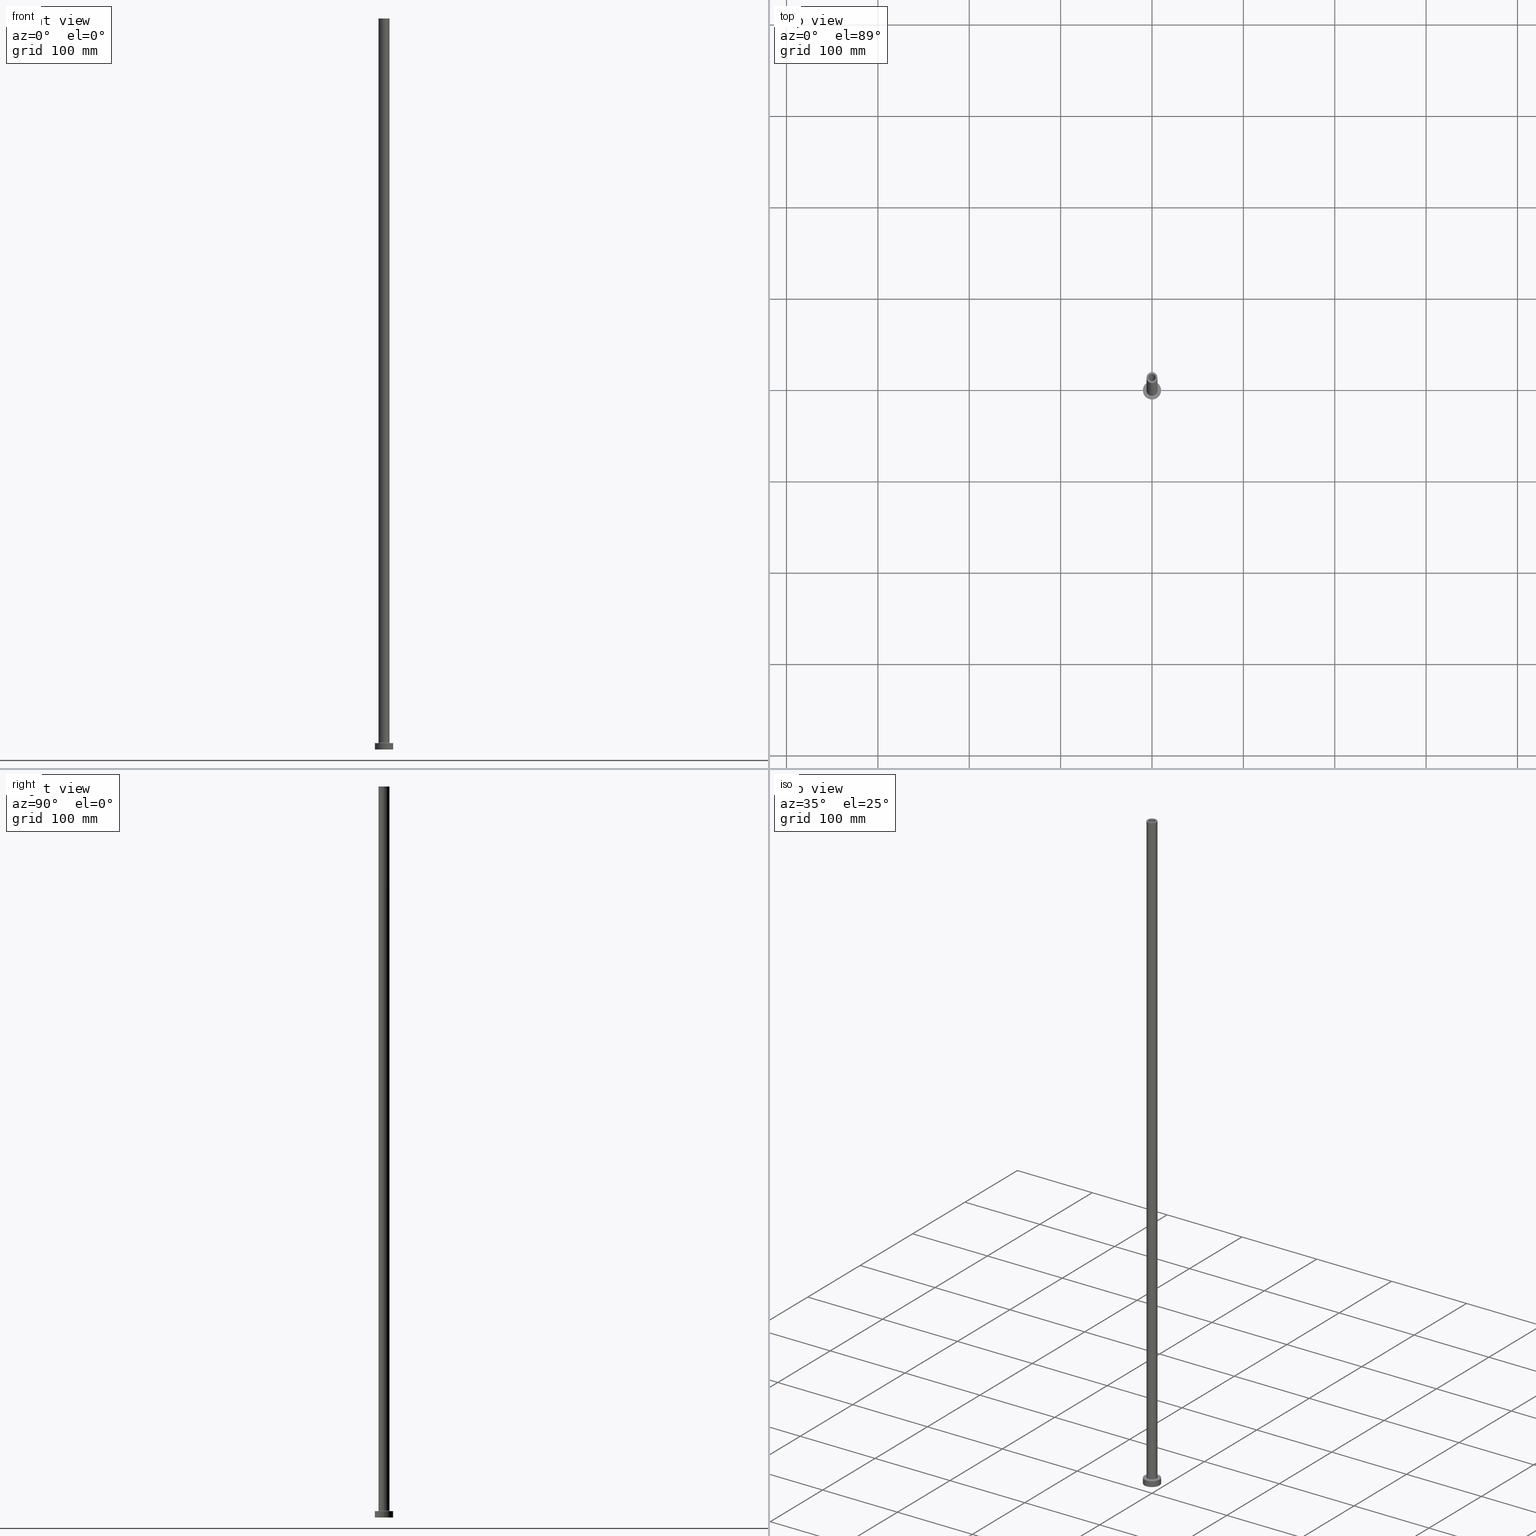
[diagram: canonical four-view strip — front | top / right | iso, engineering-drawing reading convention]
A machine part, canonical four-view strip (front | top / right | iso — engineering-drawing reading convention). The complete STEP part file that produces these views, byte-faithful:
ISO-10303-21;
HEADER;
FILE_DESCRIPTION (( 'STEP AP203' ),
    '1' );
FILE_NAME ('60a7.STEP',
    '2023-02-13T12:41:54',
    ( '' ),
    ( '' ),
    'SwSTEP 2.0',
    'SolidWorks 2019',
    '' );
FILE_SCHEMA (( 'CONFIG_CONTROL_DESIGN' ));
ENDSEC;

DATA;
#1 = EDGE_CURVE ( 'NONE', #301, #285, #30, .T. ) ;
#2 = DATE_AND_TIME ( #144, #110 ) ;
#3 = DIRECTION ( 'NONE',  ( 1.000000000000000000, 0.000000000000000000, 0.000000000000000000 ) ) ;
#4 = ORIENTED_EDGE ( 'NONE', *, *, #381, .T. ) ;
#5 = FACE_BOUND ( 'NONE', #322, .T. ) ;
#6 = ORIENTED_EDGE ( 'NONE', *, *, #100, .F. ) ;
#7 = LINE ( 'NONE', #357, #350 ) ;
#8 = ORIENTED_EDGE ( 'NONE', *, *, #55, .T. ) ;
#9 = CIRCLE ( 'NONE', #188, 4.000000000000000000 ) ;
#10 = PERSON_AND_ORGANIZATION ( #119, #73 ) ;
#11 = CARTESIAN_POINT ( 'NONE',  ( 0.000000000000000000, 0.000000000000000000, 755.0000000000000000 ) ) ;
#12 = ORIENTED_EDGE ( 'NONE', *, *, #370, .T. ) ;
#13 = CARTESIAN_POINT ( 'NONE',  ( 0.000000000000000000, 0.000000000000000000, 800.0000000000000000 ) ) ;
#14 = VERTEX_POINT ( 'NONE', #416 ) ;
#15 = DIRECTION ( 'NONE',  ( 0.000000000000000000, 0.000000000000000000, -1.000000000000000000 ) ) ;
#17 = EDGE_CURVE ( 'NONE', #260, #14, #174, .T. ) ;
#16 = VECTOR ( 'NONE', #106, 1000.000000000000000 ) ;
#18 = CARTESIAN_POINT ( 'NONE',  ( 0.000000000000000000, 0.000000000000000000, 755.0000000000000000 ) ) ;
#19 = CYLINDRICAL_SURFACE ( 'NONE', #120, 10.00000000000000000 ) ;
#20 = DIRECTION ( 'NONE',  ( -0.000000000000000000, -0.000000000000000000, -1.000000000000000000 ) ) ;
#21 = ORIENTED_EDGE ( 'NONE', *, *, #231, .T. ) ;
#22 = DIRECTION ( 'NONE',  ( -0.000000000000000000, -0.000000000000000000, -1.000000000000000000 ) ) ;
#23 = AXIS2_PLACEMENT_3D ( 'NONE', #228, #406, #367 ) ;
#24 = CC_DESIGN_APPROVAL ( #347, ( #304 ) ) ;
#25 = PRODUCT_DEFINITION ( 'NEZN�M�', '', #403, #276 ) ;
#26 = DIRECTION ( 'NONE',  ( 0.000000000000000000, 0.000000000000000000, 1.000000000000000000 ) ) ;
#27 =( NAMED_UNIT ( * ) SI_UNIT ( $, .STERADIAN. ) SOLID_ANGLE_UNIT ( ) );
#28 = ADVANCED_FACE ( 'NONE', ( #31, #175 ), #238, .F. ) ;
#29 = CIRCLE ( 'NONE', #45, 6.000000000000000888 ) ;
#30 = LINE ( 'NONE', #385, #33 ) ;
#31 = FACE_BOUND ( 'NONE', #233, .T. ) ;
#32 = DIRECTION ( 'NONE',  ( -1.000000000000000000, 0.000000000000000000, 0.000000000000000000 ) ) ;
#33 = VECTOR ( 'NONE', #133, 1000.000000000000000 ) ;
#34 = APPROVAL_PERSON_ORGANIZATION ( #234, #176, #203 ) ;
#35 = COORDINATED_UNIVERSAL_TIME_OFFSET ( 1, 0, .AHEAD. ) ;
#36 = DIRECTION ( 'NONE',  ( 0.000000000000000000, 0.000000000000000000, 1.000000000000000000 ) ) ;
#37 = EDGE_LOOP ( 'NONE', ( #129, #206 ) ) ;
#38 = CALENDAR_DATE ( 2023, 13, 2 ) ;
#39 = CARTESIAN_POINT ( 'NONE',  ( 0.000000000000000000, 0.000000000000000000, 800.0000000000000000 ) ) ;
#40 = EDGE_LOOP ( 'NONE', ( #183, #407, #12, #433 ) ) ;
#41 = ADVANCED_FACE ( 'NONE', ( #245 ), #278, .F. ) ;
#42 = DIRECTION ( 'NONE',  ( 1.000000000000000000, 0.000000000000000000, 0.000000000000000000 ) ) ;
#43 = ORIENTED_EDGE ( 'NONE', *, *, #173, .T. ) ;
#44 = CIRCLE ( 'NONE', #171, 4.150000000000000355 ) ;
#45 = AXIS2_PLACEMENT_3D ( 'NONE', #172, #130, #239 ) ;
#46 = DIRECTION ( 'NONE',  ( 1.000000000000000000, 0.000000000000000000, 0.000000000000000000 ) ) ;
#47 = VERTEX_POINT ( 'NONE', #61 ) ;
#48 = CARTESIAN_POINT ( 'NONE',  ( 0.000000000000000000, 0.000000000000000000, 755.0000000000000000 ) ) ;
#49 = ORIENTED_EDGE ( 'NONE', *, *, #439, .F. ) ;
#50 = DIRECTION ( 'NONE',  ( 1.000000000000000000, 0.000000000000000000, -0.000000000000000000 ) ) ;
#51 = EDGE_LOOP ( 'NONE', ( #247, #443 ) ) ;
#52 = AXIS2_PLACEMENT_3D ( 'NONE', #93, #243, #418 ) ;
#53 = DIRECTION ( 'NONE',  ( 1.000000000000000000, 0.000000000000000000, 0.000000000000000000 ) ) ;
#54 = VERTEX_POINT ( 'NONE', #205 ) ;
#55 = EDGE_CURVE ( 'NONE', #395, #14, #425, .T. ) ;
#56 = EDGE_LOOP ( 'NONE', ( #150, #43, #255, #236 ) ) ;
#57 = VERTEX_POINT ( 'NONE', #352 ) ;
#58 = CARTESIAN_POINT ( 'NONE',  ( 6.000000000000000888, 7.347880794884120722E-16, 800.0000000000000000 ) ) ;
#59 = ORIENTED_EDGE ( 'NONE', *, *, #279, .T. ) ;
#60 = ORIENTED_EDGE ( 'NONE', *, *, #308, .T. ) ;
#61 = CARTESIAN_POINT ( 'NONE',  ( -10.00000000000000000, 0.000000000000000000, 0.000000000000000000 ) ) ;
#62 = DIRECTION ( 'NONE',  ( 0.000000000000000000, 0.000000000000000000, 1.000000000000000000 ) ) ;
#63 = ORIENTED_EDGE ( 'NONE', *, *, #55, .F. ) ;
#64 = AXIS2_PLACEMENT_3D ( 'NONE', #149, #362, #432 ) ;
#65 = LOCAL_TIME ( 13, 41, 54.00000000000000000, #35 ) ;
#66 = CARTESIAN_POINT ( 'NONE',  ( 0.000000000000000000, 0.000000000000000000, 0.000000000000000000 ) ) ;
#67 = DIRECTION ( 'NONE',  ( -1.000000000000000000, 0.000000000000000000, 0.000000000000000000 ) ) ;
#68 = DATE_TIME_ROLE ( 'creation_date' ) ;
#69 = CARTESIAN_POINT ( 'NONE',  ( 0.000000000000000000, 0.000000000000000000, 800.0000000000000000 ) ) ;
#70 = APPROVAL_ROLE ( '' ) ;
#71 = DIRECTION ( 'NONE',  ( 1.000000000000000000, 0.000000000000000000, 0.000000000000000000 ) ) ;
#72 = VECTOR ( 'NONE', #349, 1000.000000000000000 ) ;
#73 = ORGANIZATION ( 'NEUR�EN�', 'NEUR�EN�', '' ) ;
#74 = FACE_BOUND ( 'NONE', #143, .T. ) ;
#75 = ORIENTED_EDGE ( 'NONE', *, *, #366, .F. ) ;
#76 = PRODUCT_RELATED_PRODUCT_CATEGORY ( 'detail', '', ( #420 ) ) ;
#77 = CYLINDRICAL_SURFACE ( 'NONE', #108, 4.000000000000000000 ) ;
#78 = VERTEX_POINT ( 'NONE', #282 ) ;
#79 = APPROVAL_DATE_TIME ( #351, #347 ) ;
#80 = CARTESIAN_POINT ( 'NONE',  ( -6.700000000000001066, 8.205133554287267548E-16, 7.700000000000040146 ) ) ;
#81 = VERTEX_POINT ( 'NONE', #142 ) ;
#82 = VECTOR ( 'NONE', #453, 1000.000000000000000 ) ;
#83 = CARTESIAN_POINT ( 'NONE',  ( 0.000000000000000000, 0.000000000000000000, 766.7379725676967155 ) ) ;
#84 = EDGE_CURVE ( 'NONE', #428, #260, #296, .T. ) ;
#85 = CARTESIAN_POINT ( 'NONE',  ( 4.000000000000000000, 4.898587196589412829E-16, 800.0000000000000000 ) ) ;
#86 = DIRECTION ( 'NONE',  ( 0.000000000000000000, 0.000000000000000000, 1.000000000000000000 ) ) ;
#87 = ORIENTED_EDGE ( 'NONE', *, *, #363, .T. ) ;
#88 = AXIS2_PLACEMENT_3D ( 'NONE', #125, #86, #445 ) ;
#89 = FACE_OUTER_BOUND ( 'NONE', #181, .T. ) ;
#90 = DIRECTION ( 'NONE',  ( 1.000000000000000000, 0.000000000000000000, 0.000000000000000000 ) ) ;
#91 = APPLICATION_PROTOCOL_DEFINITION ( 'international standard', 'config_control_design', 1994, #387 ) ;
#92 = AXIS2_PLACEMENT_3D ( 'NONE', #13, #394, #391 ) ;
#93 = CARTESIAN_POINT ( 'NONE',  ( 0.000000000000000000, 0.000000000000000000, 7.700000000000040146 ) ) ;
#94 = AXIS2_PLACEMENT_3D ( 'NONE', #97, #273, #424 ) ;
#95 = DIRECTION ( 'NONE',  ( 1.000000000000000000, 0.000000000000000000, -0.000000000000000000 ) ) ;
#96 = ADVANCED_FACE ( 'NONE', ( #284, #291 ), #180, .T. ) ;
#97 = CARTESIAN_POINT ( 'NONE',  ( 0.000000000000000000, 0.000000000000000000, 7.000000000000000000 ) ) ;
#98 = APPLICATION_PROTOCOL_DEFINITION ( 'international standard', 'config_control_design', 1994, #320 ) ;
#99 = EDGE_LOOP ( 'NONE', ( #187, #87, #162, #399 ) ) ;
#100 = EDGE_CURVE ( 'NONE', #428, #395, #7, .T. ) ;
#101 = EDGE_LOOP ( 'NONE', ( #156, #131 ) ) ;
#102 = CIRCLE ( 'NONE', #434, 6.700000000000001066 ) ;
#103 = CC_DESIGN_SECURITY_CLASSIFICATION ( #304, ( #403 ) ) ;
#104 = SECURITY_CLASSIFICATION_LEVEL ( 'unclassified' ) ;
#105 = CARTESIAN_POINT ( 'NONE',  ( 0.000000000000000000, 0.000000000000000000, 0.000000000000000000 ) ) ;
#106 = DIRECTION ( 'NONE',  ( -0.000000000000000000, -0.000000000000000000, -1.000000000000000000 ) ) ;
#107 = VERTEX_POINT ( 'NONE', #217 ) ;
#109 = EDGE_CURVE ( 'NONE', #389, #47, #155, .T. ) ;
#108 = AXIS2_PLACEMENT_3D ( 'NONE', #69, #211, #32 ) ;
#110 = LOCAL_TIME ( 13, 41, 54.00000000000000000, #210 ) ;
#111 = DATE_AND_TIME ( #250, #377 ) ;
#112 = DIRECTION ( 'NONE',  ( 0.000000000000000000, 0.000000000000000000, 1.000000000000000000 ) ) ;
#113 = VERTEX_POINT ( 'NONE', #292 ) ;
#114 = DIRECTION ( 'NONE',  ( 0.000000000000000000, 0.000000000000000000, 1.000000000000000000 ) ) ;
#115 = ORIENTED_EDGE ( 'NONE', *, *, #262, .T. ) ;
#116 = EDGE_CURVE ( 'NONE', #81, #47, #140, .T. ) ;
#117 = CARTESIAN_POINT ( 'NONE',  ( 0.000000000000000000, 0.000000000000000000, 7.000000000000000000 ) ) ;
#118 = ORIENTED_EDGE ( 'NONE', *, *, #1, .F. ) ;
#119 = PERSON ( 'NEUR�EN�', 'NEUR�EN�', 'NEUR�EN�', ('NEUR�EN�'), ('NEUR�EN�'), ('NEUR�EN�') ) ;
#120 = AXIS2_PLACEMENT_3D ( 'NONE', #309, #455, #415 ) ;
#121 = FACE_OUTER_BOUND ( 'NONE', #101, .T. ) ;
#122 = FACE_OUTER_BOUND ( 'NONE', #326, .T. ) ;
#123 = EDGE_CURVE ( 'NONE', #285, #422, #134, .T. ) ;
#124 = ORIENTED_EDGE ( 'NONE', *, *, #173, .F. ) ;
#125 = CARTESIAN_POINT ( 'NONE',  ( 0.000000000000000000, 0.000000000000000000, 0.000000000000000000 ) ) ;
#126 = CIRCLE ( 'NONE', #196, 6.000000000000000888 ) ;
#127 = CC_DESIGN_APPROVAL ( #138, ( #403 ) ) ;
#128 = CARTESIAN_POINT ( 'NONE',  ( 0.000000000000000000, 0.000000000000000000, 7.700000000000040146 ) ) ;
#129 = ORIENTED_EDGE ( 'NONE', *, *, #84, .F. ) ;
#130 = DIRECTION ( 'NONE',  ( 0.000000000000000000, 0.000000000000000000, 1.000000000000000000 ) ) ;
#131 = ORIENTED_EDGE ( 'NONE', *, *, #430, .T. ) ;
#132 = ADVANCED_FACE ( 'NONE', ( #440 ), #178, .T. ) ;
#133 = DIRECTION ( 'NONE',  ( -0.000000000000000000, -0.000000000000000000, -1.000000000000000000 ) ) ;
#134 = CIRCLE ( 'NONE', #303, 0.7000000000000000666 ) ;
#135 = CARTESIAN_POINT ( 'NONE',  ( -6.700000000000001066, 8.205133554287267548E-16, 7.000000000000020428 ) ) ;
#136 = DIRECTION ( 'NONE',  ( -0.000000000000000000, -0.000000000000000000, -1.000000000000000000 ) ) ;
#137 = MECHANICAL_CONTEXT ( 'NONE', #320, 'mechanical' ) ;
#138 = APPROVAL ( #318, 'NEUR�EN�' ) ;
#139 = PERSON_AND_ORGANIZATION ( #119, #73 ) ;
#140 = CIRCLE ( 'NONE', #64, 10.00000000000000000 ) ;
#141 = DATE_AND_TIME ( #190, #65 ) ;
#142 = CARTESIAN_POINT ( 'NONE',  ( 10.00000000000000000, 1.224646799147353256E-15, 0.000000000000000000 ) ) ;
#143 = EDGE_LOOP ( 'NONE', ( #63, #75 ) ) ;
#144 = CALENDAR_DATE ( 2023, 13, 2 ) ;
#145 = ADVANCED_FACE ( 'NONE', ( #74, #222 ), #214, .F. ) ;
#146 = DIRECTION ( 'NONE',  ( 0.000000000000000000, 0.000000000000000000, 1.000000000000000000 ) ) ;
#147 = ORIENTED_EDGE ( 'NONE', *, *, #109, .T. ) ;
#148 = PERSON_AND_ORGANIZATION_ROLE ( 'design_supplier' ) ;
#149 = CARTESIAN_POINT ( 'NONE',  ( 0.000000000000000000, 0.000000000000000000, 0.000000000000000000 ) ) ;
#150 = ORIENTED_EDGE ( 'NONE', *, *, #363, .F. ) ;
#151 = AXIS2_PLACEMENT_3D ( 'NONE', #66, #209, #346 ) ;
#152 = APPROVAL_ROLE ( '' ) ;
#153 = DIRECTION ( 'NONE',  ( 1.224646799147353207E-16, 1.000000000000000000, -0.000000000000000000 ) ) ;
#154 = ORIENTED_EDGE ( 'NONE', *, *, #100, .T. ) ;
#155 = LINE ( 'NONE', #257, #16 ) ;
#156 = ORIENTED_EDGE ( 'NONE', *, *, #408, .T. ) ;
#157 = CC_DESIGN_DATE_AND_TIME_ASSIGNMENT ( #2, #68, ( #25 ) ) ;
#158 = FACE_OUTER_BOUND ( 'NONE', #289, .T. ) ;
#159 = DIRECTION ( 'NONE',  ( 0.000000000000000000, 0.000000000000000000, 1.000000000000000000 ) ) ;
#160 = DIRECTION ( 'NONE',  ( 0.000000000000000000, 0.000000000000000000, -1.000000000000000000 ) ) ;
#161 = CARTESIAN_POINT ( 'NONE',  ( 0.000000000000000000, 0.000000000000000000, 766.7379725676967155 ) ) ;
#162 = ORIENTED_EDGE ( 'NONE', *, *, #381, .F. ) ;
#163 = VECTOR ( 'NONE', #20, 1000.000000000000000 ) ;
#164 = AXIS2_PLACEMENT_3D ( 'NONE', #263, #364, #160 ) ;
#165 = DIRECTION ( 'NONE',  ( 1.000000000000000000, 0.000000000000000000, 0.000000000000000000 ) ) ;
#166 = EDGE_LOOP ( 'NONE', ( #404, #447, #264, #6 ) ) ;
#167 = VERTEX_POINT ( 'NONE', #248 ) ;
#168 = EDGE_CURVE ( 'NONE', #54, #340, #251, .T. ) ;
#169 = DIRECTION ( 'NONE',  ( 1.000000000000000000, 0.000000000000000000, 0.000000000000000000 ) ) ;
#170 = ORIENTED_EDGE ( 'NONE', *, *, #253, .T. ) ;
#171 = AXIS2_PLACEMENT_3D ( 'NONE', #48, #199, #372 ) ;
#172 = CARTESIAN_POINT ( 'NONE',  ( 0.000000000000000000, 0.000000000000000000, 800.0000000000000000 ) ) ;
#173 = EDGE_CURVE ( 'NONE', #167, #54, #9, .T. ) ;
#174 = LINE ( 'NONE', #313, #213 ) ;
#175 = FACE_OUTER_BOUND ( 'NONE', #37, .T. ) ;
#176 = APPROVAL ( #375, 'NEUR�EN�' ) ;
#177 = DATE_AND_TIME ( #38, #197 ) ;
#178 = CYLINDRICAL_SURFACE ( 'NONE', #390, 10.00000000000000000 ) ;
#179 = EDGE_CURVE ( 'NONE', #272, #301, #126, .T. ) ;
#180 = PLANE ( 'NONE',  #92 ) ;
#181 = EDGE_LOOP ( 'NONE', ( #192, #170, #154, #8 ) ) ;
#182 = CARTESIAN_POINT ( 'NONE',  ( 0.000000000000000000, 0.000000000000000000, 800.0000000000000000 ) ) ;
#183 = ORIENTED_EDGE ( 'NONE', *, *, #123, .F. ) ;
#184 = PERSON_AND_ORGANIZATION ( #119, #73 ) ;
#185 = DIRECTION ( 'NONE',  ( 0.000000000000000000, 0.000000000000000000, -1.000000000000000000 ) ) ;
#186 = ADVANCED_FACE ( 'NONE', ( #191 ), #324, .T. ) ;
#187 = ORIENTED_EDGE ( 'NONE', *, *, #198, .T. ) ;
#188 = AXIS2_PLACEMENT_3D ( 'NONE', #39, #36, #46 ) ;
#189 = LOCAL_TIME ( 13, 41, 54.00000000000000000, #290 ) ;
#190 = CALENDAR_DATE ( 2023, 13, 2 ) ;
#191 = FACE_OUTER_BOUND ( 'NONE', #353, .T. ) ;
#192 = ORIENTED_EDGE ( 'NONE', *, *, #17, .F. ) ;
#193 = LINE ( 'NONE', #305, #82 ) ;
#194 = CYLINDRICAL_SURFACE ( 'NONE', #23, 6.000000000000000888 ) ;
#195 = ORIENTED_EDGE ( 'NONE', *, *, #439, .T. ) ;
#196 = AXIS2_PLACEMENT_3D ( 'NONE', #182, #114, #3 ) ;
#197 = LOCAL_TIME ( 13, 41, 54.00000000000000000, #339 ) ;
#198 = EDGE_CURVE ( 'NONE', #54, #167, #330, .T. ) ;
#199 = DIRECTION ( 'NONE',  ( 0.000000000000000000, 0.000000000000000000, 1.000000000000000000 ) ) ;
#200 = DIRECTION ( 'NONE',  ( -0.000000000000000000, -0.000000000000000000, -1.000000000000000000 ) ) ;
#201 = DIRECTION ( 'NONE',  ( -1.000000000000000000, 0.000000000000000000, 0.000000000000000000 ) ) ;
#202 = CIRCLE ( 'NONE', #426, 6.000000000000000888 ) ;
#203 = APPROVAL_ROLE ( '' ) ;
#204 = ORIENTED_EDGE ( 'NONE', *, *, #198, .F. ) ;
#205 = CARTESIAN_POINT ( 'NONE',  ( -4.000000000000000000, 0.000000000000000000, 800.0000000000000000 ) ) ;
#206 = ORIENTED_EDGE ( 'NONE', *, *, #253, .F. ) ;
#207 = CARTESIAN_POINT ( 'NONE',  ( -4.150000000000000355, 0.000000000000000000, 755.0000000000000000 ) ) ;
#208 = APPROVAL_PERSON_ORGANIZATION ( #460, #138, #70 ) ;
#209 = DIRECTION ( 'NONE',  ( 0.000000000000000000, 0.000000000000000000, 1.000000000000000000 ) ) ;
#210 = COORDINATED_UNIVERSAL_TIME_OFFSET ( 1, 0, .AHEAD. ) ;
#211 = DIRECTION ( 'NONE',  ( 0.000000000000000000, 0.000000000000000000, -1.000000000000000000 ) ) ;
#212 = PERSON_AND_ORGANIZATION ( #119, #73 ) ;
#213 = VECTOR ( 'NONE', #459, 1000.000000000000000 ) ;
#214 = PLANE ( 'NONE',  #361 ) ;
#215 = AXIS2_PLACEMENT_3D ( 'NONE', #344, #277, #169 ) ;
#216 = EDGE_LOOP ( 'NONE', ( #204, #124 ) ) ;
#217 = CARTESIAN_POINT ( 'NONE',  ( 10.00000000000000000, 1.224646799147353256E-15, 7.000000000000000000 ) ) ;
#218 = PERSON_AND_ORGANIZATION_ROLE ( 'creator' ) ;
#219 = ADVANCED_FACE ( 'NONE', ( #431 ), #77, .F. ) ;
#220 = DIRECTION ( 'NONE',  ( 1.000000000000000000, 0.000000000000000000, -0.000000000000000000 ) ) ;
#221 = UNCERTAINTY_MEASURE_WITH_UNIT (LENGTH_MEASURE( 1.000000000000000082E-05 ), #343, 'distance_accuracy_value', 'NONE');
#222 = FACE_OUTER_BOUND ( 'NONE', #258, .T. ) ;
#223 = ORIENTED_EDGE ( 'NONE', *, *, #268, .F. ) ;
#224 =( GEOMETRIC_REPRESENTATION_CONTEXT ( 3 ) GLOBAL_UNCERTAINTY_ASSIGNED_CONTEXT ( ( #221 ) ) GLOBAL_UNIT_ASSIGNED_CONTEXT ( ( #343, #378, #27 ) ) REPRESENTATION_CONTEXT ( 'NONE', 'WORKASPACE' ) );
#225 = DIRECTION ( 'NONE',  ( 0.000000000000000000, 0.000000000000000000, -1.000000000000000000 ) ) ;
#226 = ORIENTED_EDGE ( 'NONE', *, *, #430, .F. ) ;
#227 = DIRECTION ( 'NONE',  ( 1.000000000000000000, 0.000000000000000000, 0.000000000000000000 ) ) ;
#228 = CARTESIAN_POINT ( 'NONE',  ( 0.000000000000000000, 0.000000000000000000, 800.0000000000000000 ) ) ;
#229 = CIRCLE ( 'NONE', #325, 10.00000000000000000 ) ;
#230 = CARTESIAN_POINT ( 'NONE',  ( -4.000000000000000000, 0.000000000000000000, 755.0000000000000000 ) ) ;
#231 = EDGE_CURVE ( 'NONE', #113, #285, #242, .T. ) ;
#232 = DIRECTION ( 'NONE',  ( 0.000000000000000000, 0.000000000000000000, -1.000000000000000000 ) ) ;
#233 = EDGE_LOOP ( 'NONE', ( #4, #249 ) ) ;
#234 = PERSON_AND_ORGANIZATION ( #119, #73 ) ;
#235 = CC_DESIGN_PERSON_AND_ORGANIZATION_ASSIGNMENT ( #348, #218, ( #25 ) ) ;
#236 = ORIENTED_EDGE ( 'NONE', *, *, #456, .F. ) ;
#237 = DIRECTION ( 'NONE',  ( 1.000000000000000000, 0.000000000000000000, 0.000000000000000000 ) ) ;
#238 = PLANE ( 'NONE',  #317 ) ;
#239 = DIRECTION ( 'NONE',  ( 1.000000000000000000, 0.000000000000000000, 0.000000000000000000 ) ) ;
#240 = CC_DESIGN_PERSON_AND_ORGANIZATION_ASSIGNMENT ( #10, #436, ( #304 ) ) ;
#241 = DIRECTION ( 'NONE',  ( 0.000000000000000000, 0.000000000000000000, -1.000000000000000000 ) ) ;
#242 = CIRCLE ( 'NONE', #311, 6.000000000000000888 ) ;
#243 = DIRECTION ( 'NONE',  ( 0.000000000000000000, 0.000000000000000000, 1.000000000000000000 ) ) ;
#244 = CIRCLE ( 'NONE', #444, 4.150000000000000355 ) ;
#245 = FACE_OUTER_BOUND ( 'NONE', #56, .T. ) ;
#246 = ADVANCED_FACE ( 'NONE', ( #5, #121 ), #295, .T. ) ;
#247 = ORIENTED_EDGE ( 'NONE', *, *, #421, .T. ) ;
#248 = CARTESIAN_POINT ( 'NONE',  ( 4.000000000000000000, 4.898587196589412829E-16, 800.0000000000000000 ) ) ;
#249 = ORIENTED_EDGE ( 'NONE', *, *, #456, .T. ) ;
#250 = CALENDAR_DATE ( 2023, 13, 2 ) ;
#251 = LINE ( 'NONE', #355, #72 ) ;
#252 = TOROIDAL_SURFACE ( 'NONE', #52, 6.700000000000001066, 0.6999999999999999556 ) ;
#253 = EDGE_CURVE ( 'NONE', #260, #428, #44, .T. ) ;
#254 = DIRECTION ( 'NONE',  ( -1.000000000000000000, 0.000000000000000000, 0.000000000000000000 ) ) ;
#255 = ORIENTED_EDGE ( 'NONE', *, *, #168, .T. ) ;
#256 = CALENDAR_DATE ( 2023, 13, 2 ) ;
#257 = CARTESIAN_POINT ( 'NONE',  ( -10.00000000000000000, 0.000000000000000000, 7.000000000000000000 ) ) ;
#258 = EDGE_LOOP ( 'NONE', ( #270, #373 ) ) ;
#259 = FACE_OUTER_BOUND ( 'NONE', #356, .T. ) ;
#260 = VERTEX_POINT ( 'NONE', #365 ) ;
#261 = DIRECTION ( 'NONE',  ( 1.000000000000000000, 0.000000000000000000, 0.000000000000000000 ) ) ;
#262 = EDGE_CURVE ( 'NONE', #57, #422, #102, .T. ) ;
#263 = CARTESIAN_POINT ( 'NONE',  ( 6.700000000000001066, 0.000000000000000000, 7.700000000000040146 ) ) ;
#264 = ORIENTED_EDGE ( 'NONE', *, *, #366, .T. ) ;
#265 = CARTESIAN_POINT ( 'NONE',  ( -6.000000000000000888, 0.000000000000000000, 7.700000000000040146 ) ) ;
#266 = AXIS2_PLACEMENT_3D ( 'NONE', #11, #287, #42 ) ;
#267 = CIRCLE ( 'NONE', #164, 0.7000000000000000666 ) ;
#268 = EDGE_CURVE ( 'NONE', #107, #81, #269, .T. ) ;
#269 = LINE ( 'NONE', #328, #163 ) ;
#270 = ORIENTED_EDGE ( 'NONE', *, *, #376, .F. ) ;
#271 = EDGE_LOOP ( 'NONE', ( #226, #299, #396, #359 ) ) ;
#272 = VERTEX_POINT ( 'NONE', #58 ) ;
#273 = DIRECTION ( 'NONE',  ( 0.000000000000000000, 0.000000000000000000, 1.000000000000000000 ) ) ;
#274 = TOROIDAL_SURFACE ( 'NONE', #435, 6.700000000000001066, 0.6999999999999999556 ) ;
#275 = CARTESIAN_POINT ( 'NONE',  ( 0.000000000000000000, 0.000000000000000000, 755.0000000000000000 ) ) ;
#276 = DESIGN_CONTEXT ( 'detailed design', #387, 'design' ) ;
#277 = DIRECTION ( 'NONE',  ( 0.000000000000000000, 0.000000000000000000, 1.000000000000000000 ) ) ;
#278 = CYLINDRICAL_SURFACE ( 'NONE', #461, 4.000000000000000000 ) ;
#279 = EDGE_CURVE ( 'NONE', #272, #113, #193, .T. ) ;
#280 = SHAPE_DEFINITION_REPRESENTATION ( #281, #307 ) ;
#281 = PRODUCT_DEFINITION_SHAPE ( 'NONE', 'NONE',  #25 ) ;
#282 = CARTESIAN_POINT ( 'NONE',  ( 4.000000000000000000, 4.898587196589412829E-16, 755.0000000000000000 ) ) ;
#283 = PERSON_AND_ORGANIZATION_ROLE ( 'creator' ) ;
#284 = FACE_BOUND ( 'NONE', #216, .T. ) ;
#285 = VERTEX_POINT ( 'NONE', #265 ) ;
#286 = CLOSED_SHELL ( 'NONE', ( #219, #345, #331, #186, #132, #397, #246, #145, #294, #96, #413, #315, #28, #41 ) ) ;
#287 = DIRECTION ( 'NONE',  ( 0.000000000000000000, 0.000000000000000000, 1.000000000000000000 ) ) ;
#288 = CIRCLE ( 'NONE', #215, 4.000000000000000000 ) ;
#289 = EDGE_LOOP ( 'NONE', ( #293, #335, #306, #195 ) ) ;
#290 = COORDINATED_UNIVERSAL_TIME_OFFSET ( 1, 0, .AHEAD. ) ;
#291 = FACE_OUTER_BOUND ( 'NONE', #51, .T. ) ;
#292 = CARTESIAN_POINT ( 'NONE',  ( 6.000000000000000888, 7.347880794884120722E-16, 7.700000000000040146 ) ) ;
#293 = ORIENTED_EDGE ( 'NONE', *, *, #279, .F. ) ;
#294 = ADVANCED_FACE ( 'NONE', ( #158 ), #194, .T. ) ;
#295 = PLANE ( 'NONE',  #368 ) ;
#296 = CIRCLE ( 'NONE', #266, 4.150000000000000355 ) ;
#297 = CIRCLE ( 'NONE', #88, 10.00000000000000000 ) ;
#298 = DIRECTION ( 'NONE',  ( 0.000000000000000000, 0.000000000000000000, 1.000000000000000000 ) ) ;
#299 = ORIENTED_EDGE ( 'NONE', *, *, #268, .T. ) ;
#300 = DIRECTION ( 'NONE',  ( -0.000000000000000000, -0.000000000000000000, -1.000000000000000000 ) ) ;
#301 = VERTEX_POINT ( 'NONE', #449 ) ;
#302 = CARTESIAN_POINT ( 'NONE',  ( 0.000000000000000000, 0.000000000000000000, 7.000000000000000000 ) ) ;
#303 = AXIS2_PLACEMENT_3D ( 'NONE', #80, #153, #437 ) ;
#304 = SECURITY_CLASSIFICATION ( '', '', #104 ) ;
#305 = CARTESIAN_POINT ( 'NONE',  ( 6.000000000000000888, 7.347880794884120722E-16, 800.0000000000000000 ) ) ;
#306 = ORIENTED_EDGE ( 'NONE', *, *, #1, .T. ) ;
#307 = ADVANCED_BREP_SHAPE_REPRESENTATION ( '60a7', ( #358, #151 ), #224 ) ;
#308 = EDGE_CURVE ( 'NONE', #422, #57, #337, .T. ) ;
#309 = CARTESIAN_POINT ( 'NONE',  ( 0.000000000000000000, 0.000000000000000000, 7.000000000000000000 ) ) ;
#310 = ORIENTED_EDGE ( 'NONE', *, *, #123, .T. ) ;
#311 = AXIS2_PLACEMENT_3D ( 'NONE', #319, #388, #71 ) ;
#312 = CIRCLE ( 'NONE', #417, 4.000000000000000000 ) ;
#313 = CARTESIAN_POINT ( 'NONE',  ( 4.150000000000000355, 5.082284216461514170E-16, 766.7379725676967155 ) ) ;
#314 = DIRECTION ( 'NONE',  ( 0.000000000000000000, 0.000000000000000000, 1.000000000000000000 ) ) ;
#315 = ADVANCED_FACE ( 'NONE', ( #89 ), #405, .F. ) ;
#316 = PERSON_AND_ORGANIZATION ( #119, #73 ) ;
#317 = AXIS2_PLACEMENT_3D ( 'NONE', #275, #314, #95 ) ;
#318 = APPROVAL_STATUS ( 'not_yet_approved' ) ;
#319 = CARTESIAN_POINT ( 'NONE',  ( 0.000000000000000000, 0.000000000000000000, 7.700000000000040146 ) ) ;
#320 = APPLICATION_CONTEXT ( 'configuration controlled 3d designs of mechanical parts and assemblies' ) ;
#321 = DIRECTION ( 'NONE',  ( 1.000000000000000000, 0.000000000000000000, 0.000000000000000000 ) ) ;
#322 = EDGE_LOOP ( 'NONE', ( #115, #60 ) ) ;
#323 = DIRECTION ( 'NONE',  ( -0.000000000000000000, -0.000000000000000000, -1.000000000000000000 ) ) ;
#324 = CYLINDRICAL_SURFACE ( 'NONE', #410, 6.000000000000000888 ) ;
#325 = AXIS2_PLACEMENT_3D ( 'NONE', #380, #62, #237 ) ;
#326 = EDGE_LOOP ( 'NONE', ( #223, #374, #147, #438 ) ) ;
#327 = CARTESIAN_POINT ( 'NONE',  ( 0.000000000000000000, 0.000000000000000000, 800.0000000000000000 ) ) ;
#328 = CARTESIAN_POINT ( 'NONE',  ( 10.00000000000000000, 1.224646799147353256E-15, 7.000000000000000000 ) ) ;
#329 = DIRECTION ( 'NONE',  ( -1.000000000000000000, 0.000000000000000000, 0.000000000000000000 ) ) ;
#330 = CIRCLE ( 'NONE', #450, 4.000000000000000000 ) ;
#331 = ADVANCED_FACE ( 'NONE', ( #259 ), #274, .F. ) ;
#332 = CARTESIAN_POINT ( 'NONE',  ( -10.00000000000000000, 0.000000000000000000, 7.000000000000000000 ) ) ;
#333 = CARTESIAN_POINT ( 'NONE',  ( 0.000000000000000000, 0.000000000000000000, 7.000000000000000000 ) ) ;
#334 = CC_DESIGN_DATE_AND_TIME_ASSIGNMENT ( #111, #393, ( #304 ) ) ;
#335 = ORIENTED_EDGE ( 'NONE', *, *, #421, .F. ) ;
#336 = FACE_OUTER_BOUND ( 'NONE', #166, .T. ) ;
#337 = CIRCLE ( 'NONE', #401, 6.700000000000001066 ) ;
#338 = AXIS2_PLACEMENT_3D ( 'NONE', #83, #15, #329 ) ;
#339 = COORDINATED_UNIVERSAL_TIME_OFFSET ( 1, 0, .AHEAD. ) ;
#340 = VERTEX_POINT ( 'NONE', #230 ) ;
#341 = FACE_OUTER_BOUND ( 'NONE', #40, .T. ) ;
#342 = CARTESIAN_POINT ( 'NONE',  ( 0.000000000000000000, 0.000000000000000000, 0.000000000000000000 ) ) ;
#343 =( LENGTH_UNIT ( ) NAMED_UNIT ( * ) SI_UNIT ( .MILLI., .METRE. ) );
#344 = CARTESIAN_POINT ( 'NONE',  ( 0.000000000000000000, 0.000000000000000000, 755.0000000000000000 ) ) ;
#345 = ADVANCED_FACE ( 'NONE', ( #336 ), #402, .F. ) ;
#346 = DIRECTION ( 'NONE',  ( 1.000000000000000000, 0.000000000000000000, 0.000000000000000000 ) ) ;
#347 = APPROVAL ( #354, 'NEUR�EN�' ) ;
#348 = PERSON_AND_ORGANIZATION ( #119, #73 ) ;
#349 = DIRECTION ( 'NONE',  ( 0.000000000000000000, 0.000000000000000000, -1.000000000000000000 ) ) ;
#350 = VECTOR ( 'NONE', #185, 1000.000000000000000 ) ;
#351 = DATE_AND_TIME ( #256, #189 ) ;
#352 = CARTESIAN_POINT ( 'NONE',  ( 6.700000000000001066, 0.000000000000000000, 7.000000000000020428 ) ) ;
#353 = EDGE_LOOP ( 'NONE', ( #441, #59, #21, #118 ) ) ;
#354 = APPROVAL_STATUS ( 'not_yet_approved' ) ;
#355 = CARTESIAN_POINT ( 'NONE',  ( -4.000000000000000000, 0.000000000000000000, 800.0000000000000000 ) ) ;
#356 = EDGE_LOOP ( 'NONE', ( #49, #310, #392, #451 ) ) ;
#357 = CARTESIAN_POINT ( 'NONE',  ( -4.150000000000000355, 0.000000000000000000, 766.7379725676967155 ) ) ;
#358 = MANIFOLD_SOLID_BREP ( 'Odebrat vysunut�m4', #286 ) ;
#359 = ORIENTED_EDGE ( 'NONE', *, *, #109, .F. ) ;
#360 = COORDINATED_UNIVERSAL_TIME_OFFSET ( 1, 0, .AHEAD. ) ;
#361 = AXIS2_PLACEMENT_3D ( 'NONE', #105, #146, #220 ) ;
#362 = DIRECTION ( 'NONE',  ( 0.000000000000000000, 0.000000000000000000, 1.000000000000000000 ) ) ;
#363 = EDGE_CURVE ( 'NONE', #167, #78, #371, .T. ) ;
#364 = DIRECTION ( 'NONE',  ( 0.000000000000000000, -1.000000000000000000, 0.000000000000000000 ) ) ;
#365 = CARTESIAN_POINT ( 'NONE',  ( 4.150000000000000355, 5.082284216461514170E-16, 755.0000000000000000 ) ) ;
#366 = EDGE_CURVE ( 'NONE', #14, #395, #244, .T. ) ;
#367 = DIRECTION ( 'NONE',  ( -1.000000000000000000, 0.000000000000000000, 0.000000000000000000 ) ) ;
#368 = AXIS2_PLACEMENT_3D ( 'NONE', #333, #159, #50 ) ;
#369 = CIRCLE ( 'NONE', #94, 10.00000000000000000 ) ;
#370 = EDGE_CURVE ( 'NONE', #113, #57, #267, .T. ) ;
#371 = LINE ( 'NONE', #85, #457 ) ;
#372 = DIRECTION ( 'NONE',  ( 1.000000000000000000, 0.000000000000000000, 0.000000000000000000 ) ) ;
#373 = ORIENTED_EDGE ( 'NONE', *, *, #116, .F. ) ;
#374 = ORIENTED_EDGE ( 'NONE', *, *, #408, .F. ) ;
#375 = APPROVAL_STATUS ( 'not_yet_approved' ) ;
#376 = EDGE_CURVE ( 'NONE', #47, #81, #297, .T. ) ;
#377 = LOCAL_TIME ( 13, 41, 54.00000000000000000, #360 ) ;
#378 =( NAMED_UNIT ( * ) PLANE_ANGLE_UNIT ( ) SI_UNIT ( $, .RADIAN. ) );
#379 = CARTESIAN_POINT ( 'NONE',  ( 0.000000000000000000, 0.000000000000000000, 800.0000000000000000 ) ) ;
#380 = CARTESIAN_POINT ( 'NONE',  ( 0.000000000000000000, 0.000000000000000000, 7.000000000000000000 ) ) ;
#381 = EDGE_CURVE ( 'NONE', #340, #78, #312, .T. ) ;
#382 = AXIS2_PLACEMENT_3D ( 'NONE', #342, #136, #419 ) ;
#383 = APPROVAL_PERSON_ORGANIZATION ( #212, #347, #152 ) ;
#384 = CC_DESIGN_PERSON_AND_ORGANIZATION_ASSIGNMENT ( #184, #148, ( #403 ) ) ;
#385 = CARTESIAN_POINT ( 'NONE',  ( -6.000000000000000888, 0.000000000000000000, 800.0000000000000000 ) ) ;
#386 = DIRECTION ( 'NONE',  ( -1.000000000000000000, 0.000000000000000000, 0.000000000000000000 ) ) ;
#387 = APPLICATION_CONTEXT ( 'configuration controlled 3d designs of mechanical parts and assemblies' ) ;
#388 = DIRECTION ( 'NONE',  ( 0.000000000000000000, 0.000000000000000000, 1.000000000000000000 ) ) ;
#389 = VERTEX_POINT ( 'NONE', #332 ) ;
#390 = AXIS2_PLACEMENT_3D ( 'NONE', #117, #398, #386 ) ;
#391 = DIRECTION ( 'NONE',  ( 1.000000000000000000, 0.000000000000000000, -0.000000000000000000 ) ) ;
#392 = ORIENTED_EDGE ( 'NONE', *, *, #262, .F. ) ;
#393 = DATE_TIME_ROLE ( 'classification_date' ) ;
#394 = DIRECTION ( 'NONE',  ( 0.000000000000000000, 0.000000000000000000, 1.000000000000000000 ) ) ;
#395 = VERTEX_POINT ( 'NONE', #446 ) ;
#396 = ORIENTED_EDGE ( 'NONE', *, *, #116, .T. ) ;
#397 = ADVANCED_FACE ( 'NONE', ( #122 ), #19, .T. ) ;
#398 = DIRECTION ( 'NONE',  ( -0.000000000000000000, -0.000000000000000000, -1.000000000000000000 ) ) ;
#399 = ORIENTED_EDGE ( 'NONE', *, *, #168, .F. ) ;
#401 = AXIS2_PLACEMENT_3D ( 'NONE', #409, #22, #261 ) ;
#400 = CC_DESIGN_PERSON_AND_ORGANIZATION_ASSIGNMENT ( #316, #414, ( #420 ) ) ;
#402 = CYLINDRICAL_SURFACE ( 'NONE', #338, 4.150000000000000355 ) ;
#403 = PRODUCT_DEFINITION_FORMATION_WITH_SPECIFIED_SOURCE ( 'LIBOVOLN�', '', #420, .NOT_KNOWN. ) ;
#404 = ORIENTED_EDGE ( 'NONE', *, *, #84, .T. ) ;
#405 = CYLINDRICAL_SURFACE ( 'NONE', #452, 4.150000000000000355 ) ;
#406 = DIRECTION ( 'NONE',  ( -0.000000000000000000, -0.000000000000000000, -1.000000000000000000 ) ) ;
#407 = ORIENTED_EDGE ( 'NONE', *, *, #231, .F. ) ;
#408 = EDGE_CURVE ( 'NONE', #389, #107, #369, .T. ) ;
#409 = CARTESIAN_POINT ( 'NONE',  ( 0.000000000000000000, 0.000000000000000000, 7.000000000000000000 ) ) ;
#410 = AXIS2_PLACEMENT_3D ( 'NONE', #327, #323, #254 ) ;
#411 = CC_DESIGN_APPROVAL ( #176, ( #25 ) ) ;
#412 = DIRECTION ( 'NONE',  ( 0.000000000000000000, 0.000000000000000000, 1.000000000000000000 ) ) ;
#413 = ADVANCED_FACE ( 'NONE', ( #341 ), #252, .F. ) ;
#414 = PERSON_AND_ORGANIZATION_ROLE ( 'design_owner' ) ;
#415 = DIRECTION ( 'NONE',  ( -1.000000000000000000, 0.000000000000000000, 0.000000000000000000 ) ) ;
#416 = CARTESIAN_POINT ( 'NONE',  ( 4.150000000000000355, 5.082284216461514170E-16, 0.000000000000000000 ) ) ;
#417 = AXIS2_PLACEMENT_3D ( 'NONE', #18, #298, #53 ) ;
#418 = DIRECTION ( 'NONE',  ( 1.000000000000000000, 0.000000000000000000, 0.000000000000000000 ) ) ;
#419 = DIRECTION ( 'NONE',  ( 1.000000000000000000, 0.000000000000000000, 0.000000000000000000 ) ) ;
#420 = PRODUCT ( '60a7', '60a7', '', ( #137 ) ) ;
#421 = EDGE_CURVE ( 'NONE', #301, #272, #29, .T. ) ;
#422 = VERTEX_POINT ( 'NONE', #135 ) ;
#423 = CC_DESIGN_PERSON_AND_ORGANIZATION_ASSIGNMENT ( #139, #283, ( #403 ) ) ;
#424 = DIRECTION ( 'NONE',  ( 1.000000000000000000, 0.000000000000000000, 0.000000000000000000 ) ) ;
#425 = CIRCLE ( 'NONE', #382, 4.150000000000000355 ) ;
#426 = AXIS2_PLACEMENT_3D ( 'NONE', #454, #26, #458 ) ;
#427 = APPROVAL_DATE_TIME ( #141, #138 ) ;
#428 = VERTEX_POINT ( 'NONE', #207 ) ;
#429 = APPROVAL_DATE_TIME ( #177, #176 ) ;
#430 = EDGE_CURVE ( 'NONE', #107, #389, #229, .T. ) ;
#431 = FACE_OUTER_BOUND ( 'NONE', #99, .T. ) ;
#432 = DIRECTION ( 'NONE',  ( 1.000000000000000000, 0.000000000000000000, 0.000000000000000000 ) ) ;
#433 = ORIENTED_EDGE ( 'NONE', *, *, #308, .F. ) ;
#434 = AXIS2_PLACEMENT_3D ( 'NONE', #302, #200, #165 ) ;
#435 = AXIS2_PLACEMENT_3D ( 'NONE', #128, #412, #90 ) ;
#436 = PERSON_AND_ORGANIZATION_ROLE ( 'classification_officer' ) ;
#437 = DIRECTION ( 'NONE',  ( -1.000000000000000000, 1.224646799147353454E-16, 0.000000000000000000 ) ) ;
#438 = ORIENTED_EDGE ( 'NONE', *, *, #376, .T. ) ;
#439 = EDGE_CURVE ( 'NONE', #285, #113, #202, .T. ) ;
#440 = FACE_OUTER_BOUND ( 'NONE', #271, .T. ) ;
#441 = ORIENTED_EDGE ( 'NONE', *, *, #179, .F. ) ;
#442 = CARTESIAN_POINT ( 'NONE',  ( 0.000000000000000000, 0.000000000000000000, 800.0000000000000000 ) ) ;
#443 = ORIENTED_EDGE ( 'NONE', *, *, #179, .T. ) ;
#444 = AXIS2_PLACEMENT_3D ( 'NONE', #448, #300, #227 ) ;
#445 = DIRECTION ( 'NONE',  ( 1.000000000000000000, 0.000000000000000000, 0.000000000000000000 ) ) ;
#446 = CARTESIAN_POINT ( 'NONE',  ( -4.150000000000000355, 0.000000000000000000, 0.000000000000000000 ) ) ;
#447 = ORIENTED_EDGE ( 'NONE', *, *, #17, .T. ) ;
#448 = CARTESIAN_POINT ( 'NONE',  ( 0.000000000000000000, 0.000000000000000000, 0.000000000000000000 ) ) ;
#449 = CARTESIAN_POINT ( 'NONE',  ( -6.000000000000000888, 0.000000000000000000, 800.0000000000000000 ) ) ;
#450 = AXIS2_PLACEMENT_3D ( 'NONE', #442, #112, #321 ) ;
#451 = ORIENTED_EDGE ( 'NONE', *, *, #370, .F. ) ;
#452 = AXIS2_PLACEMENT_3D ( 'NONE', #161, #232, #201 ) ;
#453 = DIRECTION ( 'NONE',  ( -0.000000000000000000, -0.000000000000000000, -1.000000000000000000 ) ) ;
#454 = CARTESIAN_POINT ( 'NONE',  ( 0.000000000000000000, 0.000000000000000000, 7.700000000000040146 ) ) ;
#455 = DIRECTION ( 'NONE',  ( -0.000000000000000000, -0.000000000000000000, -1.000000000000000000 ) ) ;
#456 = EDGE_CURVE ( 'NONE', #78, #340, #288, .T. ) ;
#457 = VECTOR ( 'NONE', #225, 1000.000000000000000 ) ;
#458 = DIRECTION ( 'NONE',  ( 1.000000000000000000, 0.000000000000000000, 0.000000000000000000 ) ) ;
#459 = DIRECTION ( 'NONE',  ( 0.000000000000000000, 0.000000000000000000, -1.000000000000000000 ) ) ;
#460 = PERSON_AND_ORGANIZATION ( #119, #73 ) ;
#461 = AXIS2_PLACEMENT_3D ( 'NONE', #379, #241, #67 ) ;
ENDSEC;
END-ISO-10303-21;
